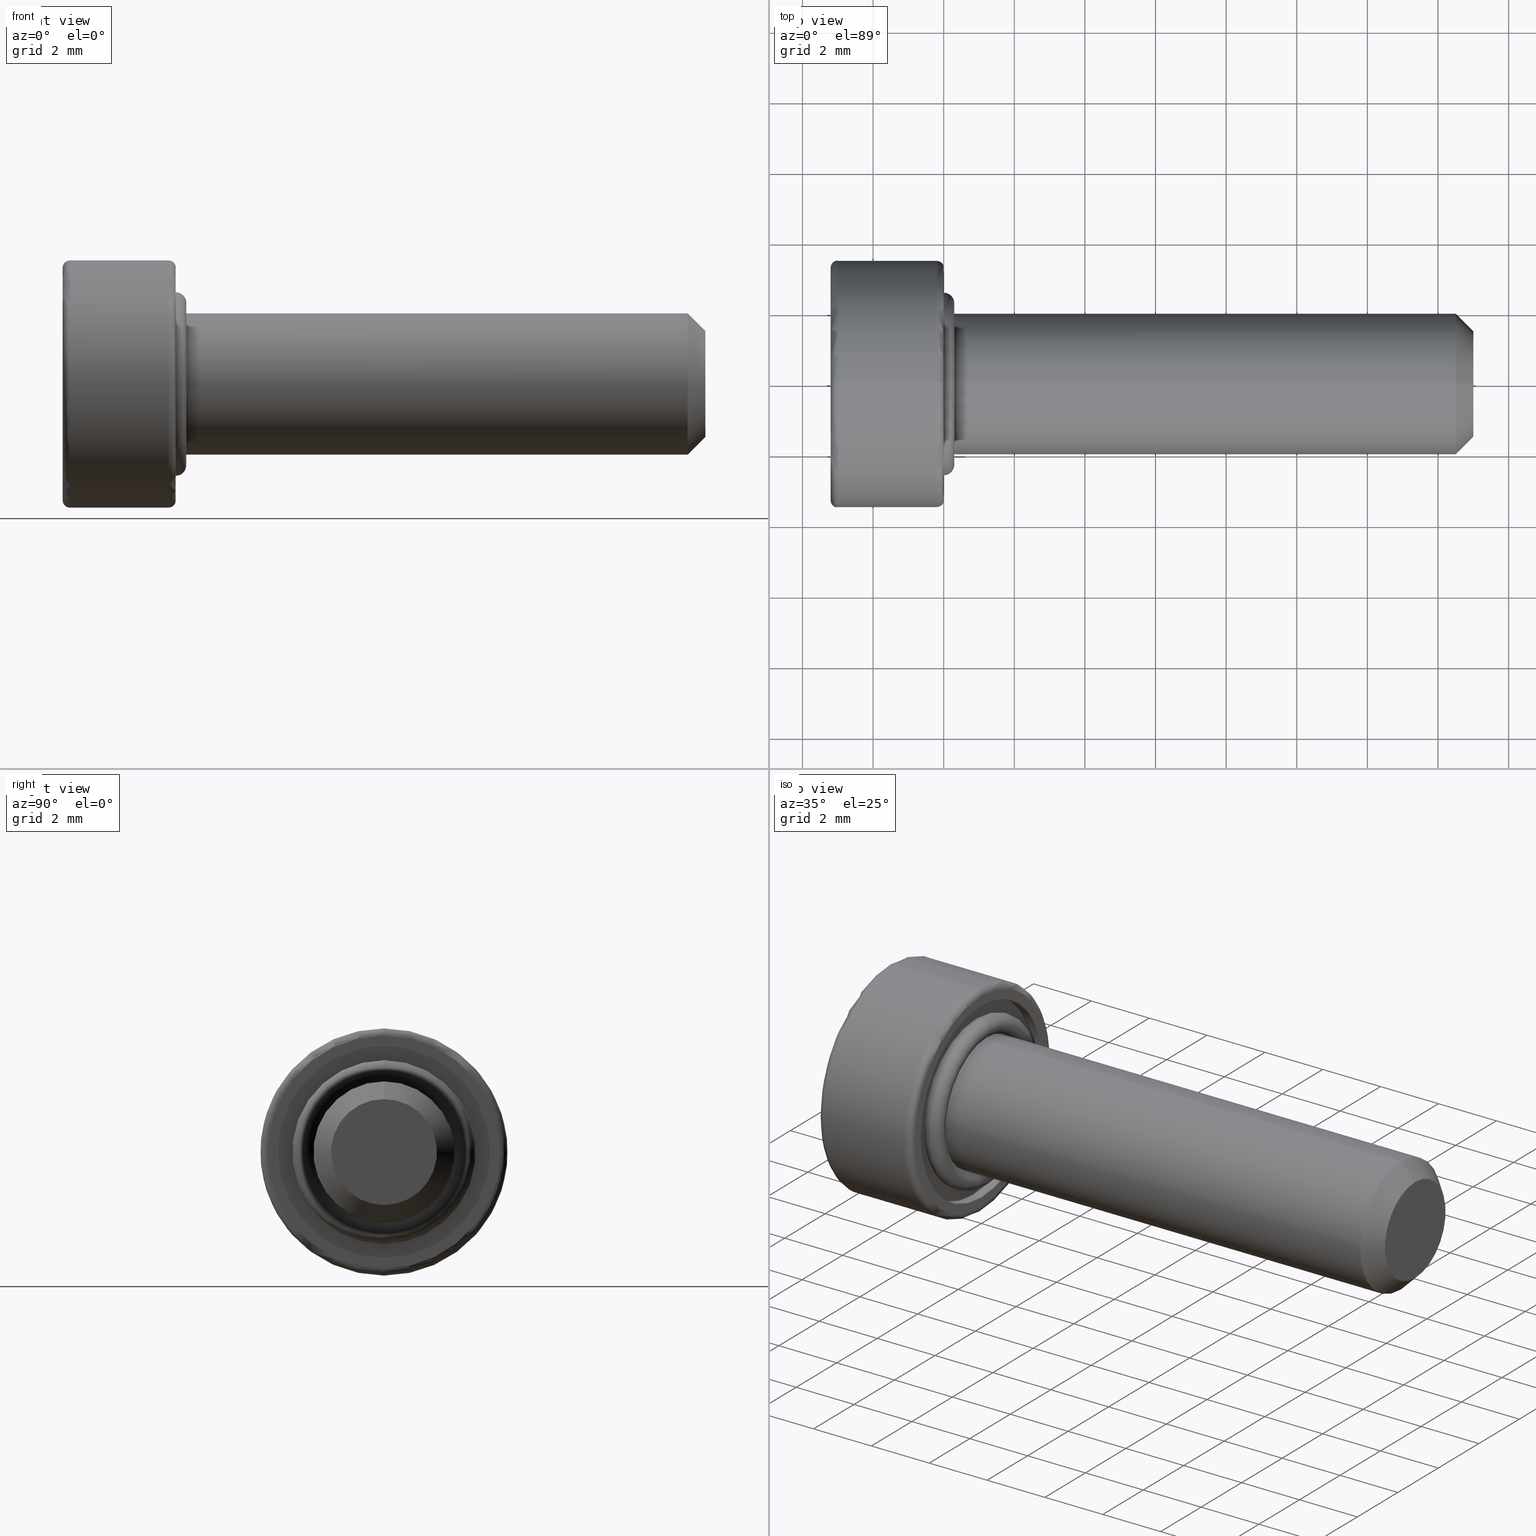
[diagram: canonical four-view strip — front | top / right | iso, engineering-drawing reading convention]
A machine part, canonical four-view strip (front | top / right | iso — engineering-drawing reading convention). The complete STEP part file that produces these views, byte-faithful:
ISO-10303-21;
HEADER;
FILE_DESCRIPTION (( 'STEP AP214' ),
    '1' );
FILE_NAME ('TL_418_M4_15.STEP',
    '2016-01-25T00:07:25',
    ( '' ),
    ( '' ),
    'SwSTEP 2.0',
    'SolidWorks 2015',
    '' );
FILE_SCHEMA (( 'AUTOMOTIVE_DESIGN' ));
ENDSEC;

DATA;
#1 = ADVANCED_FACE ( 'NONE', ( #259 ), #336, .F. ) ;
#2 = CIRCLE ( 'NONE', #41, 0.2000000000000000900 ) ;
#3 = DIRECTION ( 'NONE',  ( 0.0000000000000000000, 0.0000000000000000000, -1.000000000000000000 ) ) ;
#4 = CYLINDRICAL_SURFACE ( 'NONE', #221, 2.000000000000000000 ) ;
#5 = ORIENTED_EDGE ( 'NONE', *, *, #196, .F. ) ;
#6 = ORIENTED_EDGE ( 'NONE', *, *, #115, .T. ) ;
#7 = DIRECTION ( 'NONE',  ( 0.0000000000000000000, 0.0000000000000000000, -1.000000000000000000 ) ) ;
#8 = AXIS2_PLACEMENT_3D ( 'NONE', #659, #598, #521 ) ;
#9 = ORIENTED_EDGE ( 'NONE', *, *, #643, .T. ) ;
#10 = ORIENTED_EDGE ( 'NONE', *, *, #502, .F. ) ;
#11 = DIRECTION ( 'NONE',  ( 1.000000000000000000, -0.0000000000000000000, -0.0000000000000000000 ) ) ;
#12 = FACE_OUTER_BOUND ( 'NONE', #114, .T. ) ;
#13 = DIRECTION ( 'NONE',  ( -0.0000000000000000000, 0.4999999999999800700, -0.8660254037844501400 ) ) ;
#14 = DIRECTION ( 'NONE',  ( -1.000000000000000000, -0.0000000000000000000, -0.0000000000000000000 ) ) ;
#15 = EDGE_LOOP ( 'NONE', ( #218, #257, #430, #52 ) ) ;
#16 = DIRECTION ( 'NONE',  ( 0.0000000000000000000, 0.0000000000000000000, 1.000000000000000000 ) ) ;
#17 = VECTOR ( 'NONE', #398, 1000.000000000000100 ) ;
#18 = CARTESIAN_POINT ( 'NONE',  ( 0.0000000000000000000, 0.0000000000000000000, 0.0000000000000000000 ) ) ;
#19 = EDGE_CURVE ( 'NONE', #151, #352, #750, .T. ) ;
#20 = CARTESIAN_POINT ( 'NONE',  ( 0.0000000000000000000, 3.673940397442060400E-016, 3.000000000000000400 ) ) ;
#21 = DIRECTION ( 'NONE',  ( 0.0000000000000000000, 0.0000000000000000000, -1.000000000000000000 ) ) ;
#22 = EDGE_LOOP ( 'NONE', ( #104, #306, #353, #314, #518, #500 ) ) ;
#23 = MANIFOLD_SOLID_BREP ( '��]1', #509 ) ;
#24 = DIRECTION ( 'NONE',  ( 1.000000000000000000, 0.0000000000000000000, 0.0000000000000000000 ) ) ;
#25 = ORIENTED_EDGE ( 'NONE', *, *, #196, .T. ) ;
#26 = ADVANCED_FACE ( 'NONE', ( #96 ), #697, .T. ) ;
#27 = CARTESIAN_POINT ( 'NONE',  ( -3.000000000000000000, 0.0000000000000000000, 0.0000000000000000000 ) ) ;
#28 = DIRECTION ( 'NONE',  ( 0.0000000000000000000, 0.0000000000000000000, -1.000000000000000000 ) ) ;
#29 = DIRECTION ( 'NONE',  ( 0.0000000000000000000, 1.000000000000000000, -1.224646799147353200E-016 ) ) ;
#30 = CYLINDRICAL_SURFACE ( 'NONE', #524, 3.000000000000000400 ) ;
#31 = EDGE_CURVE ( 'NONE', #552, #517, #358, .T. ) ;
#32 = CIRCLE ( 'NONE', #781, 0.2999999999999999300 ) ;
#33 = DIRECTION ( 'NONE',  ( 1.000000000000000000, 0.0000000000000000000, 0.0000000000000000000 ) ) ;
#34 = AXIS2_PLACEMENT_3D ( 'NONE', #534, #396, #603 ) ;
#35 = DIRECTION ( 'NONE',  ( 0.0000000000000000000, 0.0000000000000000000, -1.000000000000000000 ) ) ;
#36 = EDGE_LOOP ( 'NONE', ( #105, #269 ) ) ;
#37 = SURFACE_SIDE_STYLE ('',( #638 ) ) ;
#38 = ORIENTED_EDGE ( 'NONE', *, *, #401, .T. ) ;
#39 = CARTESIAN_POINT ( 'NONE',  ( -1.900000000000000100, 0.7216878364870920000, 1.250000000000022600 ) ) ;
#40 = DIRECTION ( 'NONE',  ( -1.000000000000000000, 0.0000000000000000000, 0.0000000000000000000 ) ) ;
#41 = AXIS2_PLACEMENT_3D ( 'NONE', #162, #749, #356 ) ;
#42 = DIRECTION ( 'NONE',  ( 1.000000000000000000, 0.0000000000000000000, 0.0000000000000000000 ) ) ;
#43 = ITEM_DEFINED_TRANSFORMATION ( 'NONE', 'NONE', #46,  #435 ) ;
#44 = CARTESIAN_POINT ( 'NONE',  ( 0.0000000000000000000, 0.0000000000000000000, 0.0000000000000000000 ) ) ;
#45 = LINE ( 'NONE', #337, #17 ) ;
#46 = AXIS2_PLACEMENT_3D ( 'NONE', #622, #241, #686 ) ;
#47 = CARTESIAN_POINT ( 'NONE',  ( -1.900000000000000100, -0.7216878364870932300, -1.250000000000020900 ) ) ;
#48 =( NAMED_UNIT ( * ) PLANE_ANGLE_UNIT ( ) SI_UNIT ( $, .RADIAN. ) );
#49 = ORIENTED_EDGE ( 'NONE', *, *, #675, .T. ) ;
#50 = ADVANCED_FACE ( 'NONE', ( #12 ), #332, .T. ) ;
#51 = ORIENTED_EDGE ( 'NONE', *, *, #442, .F. ) ;
#52 = ORIENTED_EDGE ( 'NONE', *, *, #684, .T. ) ;
#53 = DIRECTION ( 'NONE',  ( 0.0000000000000000000, 0.0000000000000000000, 1.000000000000000000 ) ) ;
#54 =( REPRESENTATION_RELATIONSHIP ('NONE','NONE', #179, #326 ) REPRESENTATION_RELATIONSHIP_WITH_TRANSFORMATION ( #43 )SHAPE_REPRESENTATION_RELATIONSHIP( ) );
#55 = UNCERTAINTY_MEASURE_WITH_UNIT (LENGTH_MEASURE( 1.000000000000000100E-005 ), #98, 'distance_accuracy_value', 'NONE');
#56 = VECTOR ( 'NONE', #735, 1000.000000000000000 ) ;
#57 = DIRECTION ( 'NONE',  ( -0.0000000000000000000, 0.5000000000000395200, 0.8660254037844157300 ) ) ;
#58 = VECTOR ( 'NONE', #319, 1000.000000000000100 ) ;
#59 = ORIENTED_EDGE ( 'NONE', *, *, #412, .F. ) ;
#60 = CARTESIAN_POINT ( 'NONE',  ( -3.000000000000000000, 4.286263797015737100E-016, 3.500000000000000400 ) ) ;
#61 = VERTEX_POINT ( 'NONE', #278 ) ;
#62 = EDGE_LOOP ( 'NONE', ( #765, #693, #640, #203 ) ) ;
#63 = AXIS2_PLACEMENT_3D ( 'NONE', #784, #405, #28 ) ;
#64 = AXIS2_PLACEMENT_3D ( 'NONE', #494, #597, #682 ) ;
#65 = UNCERTAINTY_MEASURE_WITH_UNIT (LENGTH_MEASURE( 1.000000000000000100E-005 ), #300, 'distance_accuracy_value', 'NONE');
#66 = CARTESIAN_POINT ( 'NONE',  ( 15.00000000000000000, 0.0000000000000000000, 0.0000000000000000000 ) ) ;
#67 = EDGE_CURVE ( 'NONE', #153, #618, #192, .T. ) ;
#68 = DIRECTION ( 'NONE',  ( 0.0000000000000000000, 0.0000000000000000000, -1.000000000000000000 ) ) ;
#69 = DIRECTION ( 'NONE',  ( 0.0000000000000000000, 0.0000000000000000000, 1.000000000000000000 ) ) ;
#70 = VERTEX_POINT ( 'NONE', #565 ) ;
#71 = LINE ( 'NONE', #718, #395 ) ;
#72 = ORIENTED_EDGE ( 'NONE', *, *, #582, .F. ) ;
#73 = EDGE_CURVE ( 'NONE', #311, #438, #169, .T. ) ;
#74 = ORIENTED_EDGE ( 'NONE', *, *, #690, .T. ) ;
#75 = CARTESIAN_POINT ( 'NONE',  ( 0.0000000000000000000, 0.0000000000000000000, 0.0000000000000000000 ) ) ;
#76 = AXIS2_PLACEMENT_3D ( 'NONE', #209, #266, #650 ) ;
#77 = VECTOR ( 'NONE', #14, 1000.000000000000000 ) ;
#78 = CARTESIAN_POINT ( 'NONE',  ( -3.000000000000000000, 0.0000000000000000000, -3.300000000000000300 ) ) ;
#79 = VECTOR ( 'NONE', #272, 1000.000000000000000 ) ;
#80 = AXIS2_PLACEMENT_3D ( 'NONE', #27, #42, #213 ) ;
#81 = DIRECTION ( 'NONE',  ( 1.000000000000000000, 0.0000000000000000000, 0.0000000000000000000 ) ) ;
#82 = CARTESIAN_POINT ( 'NONE',  ( 0.0000000000000000000, 2.816687638038912500E-016, 2.300000000000000300 ) ) ;
#83 =( GEOMETRIC_REPRESENTATION_CONTEXT ( 3 ) GLOBAL_UNCERTAINTY_ASSIGNED_CONTEXT ( ( #65 ) ) GLOBAL_UNIT_ASSIGNED_CONTEXT ( ( #300, #743, #366 ) ) REPRESENTATION_CONTEXT ( 'NONE', 'WORKASPACE' ) );
#84 = CARTESIAN_POINT ( 'NONE',  ( -3.200000000000000200, 0.0000000000000000000, 0.0000000000000000000 ) ) ;
#85 = DIRECTION ( 'NONE',  ( 0.0000000000000000000, 0.0000000000000000000, -1.000000000000000000 ) ) ;
#86 = DIRECTION ( 'NONE',  ( -1.000000000000000000, -0.0000000000000000000, -0.0000000000000000000 ) ) ;
#87 = CARTESIAN_POINT ( 'NONE',  ( -3.000000000000000000, 0.0000000000000000000, 0.0000000000000000000 ) ) ;
#88 = DIRECTION ( 'NONE',  ( 0.0000000000000000000, -1.000000000000000000, 0.0000000000000000000 ) ) ;
#89 = AXIS2_PLACEMENT_3D ( 'NONE', #609, #472, #467 ) ;
#90 = CARTESIAN_POINT ( 'NONE',  ( -1.900000000000000100, 0.7216878364870081800, -1.250000000000022200 ) ) ;
#91 = DIRECTION ( 'NONE',  ( -1.000000000000000000, -0.0000000000000000000, -0.0000000000000000000 ) ) ;
#92 = ORIENTED_EDGE ( 'NONE', *, *, #374, .T. ) ;
#93 = ORIENTED_EDGE ( 'NONE', *, *, #73, .F. ) ;
#94 = DIRECTION ( 'NONE',  ( -0.0000000000000000000, -0.5000000000000381900, -0.8660254037844166100 ) ) ;
#95 = DIRECTION ( 'NONE',  ( -1.000000000000000000, -0.0000000000000000000, -0.0000000000000000000 ) ) ;
#96 = FACE_OUTER_BOUND ( 'NONE', #381, .T. ) ;
#97 = CARTESIAN_POINT ( 'NONE',  ( -1.900000000000000100, 0.7216878364870920000, 1.250000000000022600 ) ) ;
#98 =( LENGTH_UNIT ( ) NAMED_UNIT ( * ) SI_UNIT ( .MILLI., .METRE. ) );
#99 = AXIS2_PLACEMENT_3D ( 'NONE', #668, #285, #727 ) ;
#100 = FACE_OUTER_BOUND ( 'NONE', #608, .T. ) ;
#101 = AXIS2_PLACEMENT_3D ( 'NONE', #473, #275, #231 ) ;
#102 = VECTOR ( 'NONE', #142, 1000.000000000000000 ) ;
#103 = CARTESIAN_POINT ( 'NONE',  ( -0.2999999999999999900, 0.0000000000000000000, 0.0000000000000000000 ) ) ;
#104 = ORIENTED_EDGE ( 'NONE', *, *, #756, .F. ) ;
#105 = ORIENTED_EDGE ( 'NONE', *, *, #147, .T. ) ;
#106 = LINE ( 'NONE', #666, #346 ) ;
#107 = SURFACE_SIDE_STYLE ('',( #581 ) ) ;
#108 = ADVANCED_FACE ( 'NONE', ( #652 ), #177, .F. ) ;
#109 = EDGE_CURVE ( 'NONE', #253, #628, #486, .T. ) ;
#110 = APPLICATION_CONTEXT ( 'automotive_design' ) ;
#111 = PRESENTATION_STYLE_ASSIGNMENT (( #479 ) ) ;
#112 = EDGE_LOOP ( 'NONE', ( #245, #713, #93, #140 ) ) ;
#113 = ORIENTED_EDGE ( 'NONE', *, *, #287, .F. ) ;
#114 = EDGE_LOOP ( 'NONE', ( #429, #583, #375, #188 ) ) ;
#115 = EDGE_CURVE ( 'NONE', #452, #530, #679, .T. ) ;
#116 = DIRECTION ( 'NONE',  ( 0.0000000000000000000, -0.5000000000000395200, -0.8660254037844157300 ) ) ;
#117 = CIRCLE ( 'NONE', #211, 0.2999999999999999300 ) ;
#118 = LINE ( 'NONE', #97, #768 ) ;
#119 = EDGE_LOOP ( 'NONE', ( #547, #376, #25, #757 ) ) ;
#120 = AXIS2_PLACEMENT_3D ( 'NONE', #497, #123, #460 ) ;
#121 = CONICAL_SURFACE ( 'NONE', #613, 1.499999999999999600, 0.7853981633974482800 ) ;
#122 = AXIS2_PLACEMENT_3D ( 'NONE', #426, #53, #490 ) ;
#123 = DIRECTION ( 'NONE',  ( 1.000000000000000000, -0.0000000000000000000, -0.0000000000000000000 ) ) ;
#124 = ORIENTED_EDGE ( 'NONE', *, *, #626, .F. ) ;
#125 = CYLINDRICAL_SURFACE ( 'NONE', #264, 3.500000000000000400 ) ;
#126 = CARTESIAN_POINT ( 'NONE',  ( -3.200000000000000200, -0.7216878364870070700, 1.250000000000022400 ) ) ;
#127 = ADVANCED_FACE ( 'NONE', ( #316 ), #121, .T. ) ;
#128 = DIRECTION ( 'NONE',  ( 0.0000000000000000000, 0.0000000000000000000, -1.000000000000000000 ) ) ;
#129 = AXIS2_PLACEMENT_3D ( 'NONE', #338, #762, #397 ) ;
#130 = VERTEX_POINT ( 'NONE', #302 ) ;
#131 = ORIENTED_EDGE ( 'NONE', *, *, #468, .F. ) ;
#132 = DIRECTION ( 'NONE',  ( 0.0000000000000000000, 0.0000000000000000000, 1.000000000000000000 ) ) ;
#133 = STYLED_ITEM ( 'NONE', ( #248 ), #23 ) ;
#134 = PRESENTATION_STYLE_ASSIGNMENT (( #798 ) ) ;
#135 = LINE ( 'NONE', #186, #290 ) ;
#136 = CYLINDRICAL_SURFACE ( 'NONE', #471, 2.000000000000000000 ) ;
#137 = DIRECTION ( 'NONE',  ( 1.000000000000000000, 0.0000000000000000000, 0.0000000000000000000 ) ) ;
#138 = AXIS2_PLACEMENT_3D ( 'NONE', #409, #33, #474 ) ;
#139 = EDGE_LOOP ( 'NONE', ( #761, #431, #463, #696 ) ) ;
#140 = ORIENTED_EDGE ( 'NONE', *, *, #454, .T. ) ;
#141 = CARTESIAN_POINT ( 'NONE',  ( -3.200000000000000200, -0.7216878364870070700, 1.250000000000022400 ) ) ;
#142 = DIRECTION ( 'NONE',  ( 1.000000000000000000, -0.0000000000000000000, -0.0000000000000000000 ) ) ;
#143 = FACE_OUTER_BOUND ( 'NONE', #444, .T. ) ;
#144 = UNCERTAINTY_MEASURE_WITH_UNIT (LENGTH_MEASURE( 1.000000000000000100E-005 ), #424, 'distance_accuracy_value', 'NONE');
#145 = DIRECTION ( 'NONE',  ( 1.000000000000000000, -0.0000000000000000000, 0.0000000000000000000 ) ) ;
#146 = ORIENTED_EDGE ( 'NONE', *, *, #604, .T. ) ;
#147 = EDGE_CURVE ( 'NONE', #516, #315, #296, .T. ) ;
#148 = CIRCLE ( 'NONE', #138, 3.300000000000000300 ) ;
#149 = PRODUCT_DEFINITION_SHAPE ( 'NONE', 'NONE',  #820 ) ;
#150 = ADVANCED_FACE ( 'NONE', ( #143 ), #773, .F. ) ;
#151 = VERTEX_POINT ( 'NONE', #553 ) ;
#152 = PLANE ( 'NONE',  #596 ) ;
#153 = VERTEX_POINT ( 'NONE', #605 ) ;
#154 = DIRECTION ( 'NONE',  ( 0.0000000000000000000, -0.8660254037844158400, 0.5000000000000396300 ) ) ;
#155 = DIRECTION ( 'NONE',  ( -1.000000000000000000, 0.0000000000000000000, 0.0000000000000000000 ) ) ;
#156 = EDGE_CURVE ( 'NONE', #315, #516, #620, .T. ) ;
#157 = CARTESIAN_POINT ( 'NONE',  ( -3.200000000000000200, 0.0000000000000000000, -3.500000000000000400 ) ) ;
#158 = LINE ( 'NONE', #47, #631 ) ;
#159 = CARTESIAN_POINT ( 'NONE',  ( -3.200000000000000200, -1.443375672974113600, 2.556978512743960800E-014 ) ) ;
#160 = AXIS2_PLACEMENT_3D ( 'NONE', #18, #459, #85 ) ;
#161 = LINE ( 'NONE', #334, #646 ) ;
#162 = CARTESIAN_POINT ( 'NONE',  ( -0.2000000000000000900, 4.041334437186266000E-016, 3.300000000000000300 ) ) ;
#163 =( NAMED_UNIT ( * ) SI_UNIT ( $, .STERADIAN. ) SOLID_ANGLE_UNIT ( ) );
#164 = ORIENTED_EDGE ( 'NONE', *, *, #378, .T. ) ;
#165 = ORIENTED_EDGE ( 'NONE', *, *, #791, .T. ) ;
#166 = DIRECTION ( 'NONE',  ( 1.000000000000000000, -0.0000000000000000000, -0.0000000000000000000 ) ) ;
#167 = ORIENTED_EDGE ( 'NONE', *, *, #156, .F. ) ;
#168 = DIRECTION ( 'NONE',  ( 1.000000000000000000, 0.0000000000000000000, 0.0000000000000000000 ) ) ;
#169 = LINE ( 'NONE', #482, #813 ) ;
#170 = AXIS2_PLACEMENT_3D ( 'NONE', #350, #423, #220 ) ;
#171 = DIRECTION ( 'NONE',  ( 1.000000000000000000, 0.0000000000000000000, 0.0000000000000000000 ) ) ;
#172 =( NAMED_UNIT ( * ) SI_UNIT ( $, .STERADIAN. ) SOLID_ANGLE_UNIT ( ) );
#173 = PRODUCT_DEFINITION ( 'UNKNOWN', '', #382, #526 ) ;
#174 = ORIENTED_EDGE ( 'NONE', *, *, #491, .T. ) ;
#175 = ORIENTED_EDGE ( 'NONE', *, *, #67, .T. ) ;
#176 = CIRCLE ( 'NONE', #249, 0.2999999999999999300 ) ;
#177 = PLANE ( 'NONE',  #570 ) ;
#178 = DIRECTION ( 'NONE',  ( 1.000000000000000000, 0.0000000000000000000, 0.0000000000000000000 ) ) ;
#179 = SHAPE_REPRESENTATION ( 'TL_418_M4_15', ( #122, #46 ), #83 ) ;
#180 = UNCERTAINTY_MEASURE_WITH_UNIT (LENGTH_MEASURE( 1.000000000000000100E-005 ), #546, 'distance_accuracy_value', 'NONE');
#181 = VERTEX_POINT ( 'NONE', #60 ) ;
#182 = CARTESIAN_POINT ( 'NONE',  ( 15.00000000000000000, 0.0000000000000000000, 0.0000000000000000000 ) ) ;
#183 = APPLICATION_CONTEXT ( 'automotive_design' ) ;
#184 = FACE_OUTER_BOUND ( 'NONE', #206, .T. ) ;
#185 = TOROIDAL_SURFACE ( 'NONE', #386, 2.300000000000000300, 0.2999999999999998800 ) ;
#186 = CARTESIAN_POINT ( 'NONE',  ( -3.200000000000000200, 0.7216878364870920000, 1.250000000000022600 ) ) ;
#187 = PRESENTATION_LAYER_ASSIGNMENT (  '', '', ( #133 ) ) ;
#188 = ORIENTED_EDGE ( 'NONE', *, *, #555, .T. ) ;
#189 = ORIENTED_EDGE ( 'NONE', *, *, #109, .F. ) ;
#190 = PRESENTATION_LAYER_ASSIGNMENT (  '', '', ( #233 ) ) ;
#191 = EDGE_LOOP ( 'NONE', ( #466, #687, #533, #551 ) ) ;
#192 = CIRCLE ( 'NONE', #432, 3.000000000000000400 ) ;
#193 = ORIENTED_EDGE ( 'NONE', *, *, #367, .T. ) ;
#194 = LINE ( 'NONE', #270, #504 ) ;
#195 = CARTESIAN_POINT ( 'NONE',  ( -1.900000000000000100, 1.443375672974113000, -2.406411063411982600E-014 ) ) ;
#196 = EDGE_CURVE ( 'NONE', #618, #153, #635, .T. ) ;
#197 = ORIENTED_EDGE ( 'NONE', *, *, #726, .T. ) ;
#198 = DIRECTION ( 'NONE',  ( 0.0000000000000000000, 0.0000000000000000000, -1.000000000000000000 ) ) ;
#199 = COLOUR_RGB ( '',0.7921568627450980000, 0.8196078431372548800, 0.9333333333333333500 ) ;
#200 = DIRECTION ( 'NONE',  ( 0.0000000000000000000, 1.224646799147353200E-016, 1.000000000000000000 ) ) ;
#201 = CIRCLE ( 'NONE', #89, 3.300000000000000300 ) ;
#202 = EDGE_CURVE ( 'NONE', #181, #552, #456, .T. ) ;
#203 = ORIENTED_EDGE ( 'NONE', *, *, #367, .F. ) ;
#204 = CARTESIAN_POINT ( 'NONE',  ( -0.2999999999999999900, 0.0000000000000000000, 0.0000000000000000000 ) ) ;
#205 = AXIS2_PLACEMENT_3D ( 'NONE', #465, #215, #655 ) ;
#206 = EDGE_LOOP ( 'NONE', ( #388, #59, #193, #74 ) ) ;
#207 = ORIENTED_EDGE ( 'NONE', *, *, #273, .F. ) ;
#208 = DIRECTION ( 'NONE',  ( 0.0000000000000000000, -1.000000000000000000, 0.0000000000000000000 ) ) ;
#209 = CARTESIAN_POINT ( 'NONE',  ( -3.000000000000000000, 4.041334437186266000E-016, 3.300000000000000300 ) ) ;
#210 = CARTESIAN_POINT ( 'NONE',  ( -1.900000000000000100, -0.7216878364870932300, -1.250000000000020900 ) ) ;
#211 = AXIS2_PLACEMENT_3D ( 'NONE', #790, #29, #599 ) ;
#212 = SHAPE_DEFINITION_REPRESENTATION ( #740, #326 ) ;
#213 = DIRECTION ( 'NONE',  ( 0.0000000000000000000, 0.0000000000000000000, -1.000000000000000000 ) ) ;
#214 = VECTOR ( 'NONE', #13, 1000.000000000000100 ) ;
#215 = DIRECTION ( 'NONE',  ( 0.0000000000000000000, -9.013887592422725400E-016, -1.000000000000000000 ) ) ;
#216 = DIRECTION ( 'NONE',  ( 1.000000000000000000, 0.0000000000000000000, 0.0000000000000000000 ) ) ;
#217 = VERTEX_POINT ( 'NONE', #591 ) ;
#218 = ORIENTED_EDGE ( 'NONE', *, *, #806, .T. ) ;
#219 = DIRECTION ( 'NONE',  ( -0.0000000000000000000, -0.5000000000000381900, -0.8660254037844166100 ) ) ;
#220 = DIRECTION ( 'NONE',  ( 0.0000000000000000000, 0.0000000000000000000, -1.000000000000000000 ) ) ;
#221 = AXIS2_PLACEMENT_3D ( 'NONE', #222, #385, #641 ) ;
#222 = CARTESIAN_POINT ( 'NONE',  ( 15.00000000000000000, 0.0000000000000000000, 0.0000000000000000000 ) ) ;
#223 = CIRCLE ( 'NONE', #394, 1.499999999999999600 ) ;
#224 = CARTESIAN_POINT ( 'NONE',  ( -0.2999999999999999900, 0.0000000000000000000, -3.000000000000000400 ) ) ;
#225 = LINE ( 'NONE', #126, #58 ) ;
#226 = DIRECTION ( 'NONE',  ( 1.000000000000000000, 0.0000000000000000000, 0.0000000000000000000 ) ) ;
#227 = FILL_AREA_STYLE_COLOUR ( '', #411 ) ;
#228 = EDGE_LOOP ( 'NONE', ( #164, #481, #267, #483 ) ) ;
#229 = CARTESIAN_POINT ( 'NONE',  ( 15.00000000000000000, 0.0000000000000000000, 1.499999999999999600 ) ) ;
#230 = MECHANICAL_DESIGN_GEOMETRIC_PRESENTATION_REPRESENTATION (  '', ( #133 ), #261 ) ;
#231 = DIRECTION ( 'NONE',  ( 0.0000000000000000000, -0.4999999999999801300, 0.8660254037844501400 ) ) ;
#232 = CARTESIAN_POINT ( 'NONE',  ( 15.00000000000000000, 0.0000000000000000000, 1.499999999999999600 ) ) ;
#233 = STYLED_ITEM ( 'NONE', ( #111 ), #758 ) ;
#234 = DIRECTION ( 'NONE',  ( -1.000000000000000000, -0.0000000000000000000, -0.0000000000000000000 ) ) ;
#235 = CIRCLE ( 'NONE', #556, 2.000000000000000400 ) ;
#236 = DIRECTION ( 'NONE',  ( -0.0000000000000000000, -1.000000000000000000, 9.013887592422725400E-016 ) ) ;
#237 = CARTESIAN_POINT ( 'NONE',  ( -0.2999999999999999900, 0.0000000000000000000, 0.0000000000000000000 ) ) ;
#238 = PRODUCT_DEFINITION_SHAPE ( 'NONE', 'NONE',  #254 ) ;
#239 = CARTESIAN_POINT ( 'NONE',  ( 0.0000000000000000000, 0.0000000000000000000, 0.0000000000000000000 ) ) ;
#240 = DIRECTION ( 'NONE',  ( 0.0000000000000000000, 0.0000000000000000000, -1.000000000000000000 ) ) ;
#241 = DIRECTION ( 'NONE',  ( 0.0000000000000000000, 0.0000000000000000000, 1.000000000000000000 ) ) ;
#242 = EDGE_CURVE ( 'NONE', #253, #246, #106, .T. ) ;
#243 = PRODUCT_CONTEXT ( 'NONE', #183, 'mechanical' ) ;
#244 = CARTESIAN_POINT ( 'NONE',  ( -1.900000000000000100, -0.7216878364870070700, 1.250000000000022400 ) ) ;
#245 = ORIENTED_EDGE ( 'NONE', *, *, #578, .T. ) ;
#246 = VERTEX_POINT ( 'NONE', #671 ) ;
#247 = EDGE_CURVE ( 'NONE', #458, #445, #796, .T. ) ;
#248 = PRESENTATION_STYLE_ASSIGNMENT (( #661 ) ) ;
#249 = AXIS2_PLACEMENT_3D ( 'NONE', #780, #277, #333 ) ;
#250 = LINE ( 'NONE', #195, #77 ) ;
#251 = LINE ( 'NONE', #721, #79 ) ;
#252 = AXIS2_PLACEMENT_3D ( 'NONE', #402, #88, #35 ) ;
#253 = VERTEX_POINT ( 'NONE', #297 ) ;
#254 = PRODUCT_DEFINITION ( 'UNKNOWN', '', #299, #255 ) ;
#255 = PRODUCT_DEFINITION_CONTEXT ( 'detailed design', #689, 'design' ) ;
#256 = AXIS2_PLACEMENT_3D ( 'NONE', #393, #512, #769 ) ;
#257 = ORIENTED_EDGE ( 'NONE', *, *, #491, .F. ) ;
#258 = ORIENTED_EDGE ( 'NONE', *, *, #707, .T. ) ;
#259 = FACE_OUTER_BOUND ( 'NONE', #485, .T. ) ;
#260 = DIRECTION ( 'NONE',  ( 1.000000000000000000, 0.0000000000000000000, 0.0000000000000000000 ) ) ;
#261 =( GEOMETRIC_REPRESENTATION_CONTEXT ( 3 ) GLOBAL_UNCERTAINTY_ASSIGNED_CONTEXT ( ( #180 ) ) GLOBAL_UNIT_ASSIGNED_CONTEXT ( ( #546, #477, #288 ) ) REPRESENTATION_CONTEXT ( 'NONE', 'WORKASPACE' ) );
#262 = FACE_BOUND ( 'NONE', #293, .T. ) ;
#263 = CARTESIAN_POINT ( 'NONE',  ( -0.2000000000000000900, 0.0000000000000000000, 0.0000000000000000000 ) ) ;
#264 = AXIS2_PLACEMENT_3D ( 'NONE', #347, #226, #787 ) ;
#265 = LINE ( 'NONE', #523, #102 ) ;
#266 = DIRECTION ( 'NONE',  ( 0.0000000000000000000, 1.000000000000000000, -1.224646799147353200E-016 ) ) ;
#267 = ORIENTED_EDGE ( 'NONE', *, *, #791, .F. ) ;
#268 = DIRECTION ( 'NONE',  ( 1.000000000000000000, 0.0000000000000000000, 0.0000000000000000000 ) ) ;
#269 = ORIENTED_EDGE ( 'NONE', *, *, #156, .T. ) ;
#270 = CARTESIAN_POINT ( 'NONE',  ( -1.900000000000000100, 0.7216878364870081800, -1.250000000000022200 ) ) ;
#271 = FACE_OUTER_BOUND ( 'NONE', #506, .T. ) ;
#272 = DIRECTION ( 'NONE',  ( 1.000000000000000000, -0.0000000000000000000, -0.0000000000000000000 ) ) ;
#273 = EDGE_CURVE ( 'NONE', #542, #445, #670, .T. ) ;
#274 = DIRECTION ( 'NONE',  ( 0.0000000000000000000, 0.0000000000000000000, -1.000000000000000000 ) ) ;
#275 = DIRECTION ( 'NONE',  ( -0.0000000000000000000, 0.8660254037844501400, 0.4999999999999801300 ) ) ;
#276 = LINE ( 'NONE', #677, #56 ) ;
#277 = DIRECTION ( 'NONE',  ( -0.0000000000000000000, -1.000000000000000000, -0.0000000000000000000 ) ) ;
#278 = CARTESIAN_POINT ( 'NONE',  ( -3.673940397442057600E-017, 2.449293598294706900E-016, 2.000000000000000400 ) ) ;
#279 = PLANE ( 'NONE',  #205 ) ;
#280 = ORIENTED_EDGE ( 'NONE', *, *, #545, .F. ) ;
#281 = VERTEX_POINT ( 'NONE', #738 ) ;
#282 = DIRECTION ( 'NONE',  ( 0.0000000000000000000, 0.0000000000000000000, -1.000000000000000000 ) ) ;
#283 = CARTESIAN_POINT ( 'NONE',  ( 15.00000000000000000, 1.836970198721029400E-016, -1.499999999999999600 ) ) ;
#284 = ADVANCED_BREP_SHAPE_REPRESENTATION ( '', ( #23, #758, #435 ), #484 ) ;
#285 = DIRECTION ( 'NONE',  ( 1.000000000000000000, 0.0000000000000000000, 0.0000000000000000000 ) ) ;
#286 = EDGE_LOOP ( 'NONE', ( #642, #357 ) ) ;
#287 = EDGE_CURVE ( 'NONE', #552, #616, #2, .T. ) ;
#288 =( NAMED_UNIT ( * ) SI_UNIT ( $, .STERADIAN. ) SOLID_ANGLE_UNIT ( ) );
#289 = CARTESIAN_POINT ( 'NONE',  ( 0.0000000000000000000, 0.0000000000000000000, 0.0000000000000000000 ) ) ;
#290 = VECTOR ( 'NONE', #630, 1000.000000000000000 ) ;
#291 = TOROIDAL_SURFACE ( 'NONE', #607, 2.300000000000000300, 0.2999999999999998800 ) ;
#292 = DIRECTION ( 'NONE',  ( -0.7071067811865474600, 0.0000000000000000000, 0.7071067811865474600 ) ) ;
#293 = EDGE_LOOP ( 'NONE', ( #753, #362 ) ) ;
#294 = ORIENTED_EDGE ( 'NONE', *, *, #726, .F. ) ;
#295 = FILL_AREA_STYLE_COLOUR ( '', #199 ) ;
#296 = CIRCLE ( 'NONE', #649, 3.300000000000000300 ) ;
#297 = CARTESIAN_POINT ( 'NONE',  ( -1.900000000000000100, -1.443375672974113600, 2.556978512743960800E-014 ) ) ;
#298 = DIRECTION ( 'NONE',  ( 1.000000000000000000, 0.0000000000000000000, 0.0000000000000000000 ) ) ;
#299 = PRODUCT_DEFINITION_FORMATION_WITH_SPECIFIED_SOURCE ( 'ANY', '', #698, .NOT_KNOWN. ) ;
#300 =( LENGTH_UNIT ( ) NAMED_UNIT ( * ) SI_UNIT ( .MILLI., .METRE. ) );
#301 = FACE_OUTER_BOUND ( 'NONE', #119, .T. ) ;
#302 = CARTESIAN_POINT ( 'NONE',  ( -1.900000000000000100, 0.7216878364870920000, 1.250000000000022600 ) ) ;
#303 = APPLICATION_PROTOCOL_DEFINITION ( 'draft international standard', 'automotive_design', 1998, #689 ) ;
#304 = EDGE_LOOP ( 'NONE', ( #92, #38, #567, #165, #9, #330 ) ) ;
#305 = AXIS2_PLACEMENT_3D ( 'NONE', #66, #155, #132 ) ;
#306 = ORIENTED_EDGE ( 'NONE', *, *, #806, .F. ) ;
#307 = CARTESIAN_POINT ( 'NONE',  ( 0.0000000000000000000, 0.0000000000000000000, 0.0000000000000000000 ) ) ;
#308 = SURFACE_STYLE_FILL_AREA ( #742 ) ;
#309 = TOROIDAL_SURFACE ( 'NONE', #170, 2.300000000000000300, 0.2999999999999998800 ) ;
#310 = AXIS2_PLACEMENT_3D ( 'NONE', #691, #804, #240 ) ;
#311 = VERTEX_POINT ( 'NONE', #731 ) ;
#312 = MECHANICAL_DESIGN_GEOMETRIC_PRESENTATION_REPRESENTATION (  '', ( #233 ), #359 ) ;
#313 = VERTEX_POINT ( 'NONE', #722 ) ;
#314 = ORIENTED_EDGE ( 'NONE', *, *, #675, .F. ) ;
#315 = VERTEX_POINT ( 'NONE', #776 ) ;
#316 = FACE_OUTER_BOUND ( 'NONE', #339, .T. ) ;
#317 = VECTOR ( 'NONE', #91, 1000.000000000000000 ) ;
#318 = EDGE_CURVE ( 'NONE', #181, #70, #323, .T. ) ;
#319 = DIRECTION ( 'NONE',  ( -0.0000000000000000000, 0.5000000000000395200, 0.8660254037844157300 ) ) ;
#320 = VERTEX_POINT ( 'NONE', #373 ) ;
#321 = DIRECTION ( 'NONE',  ( -1.000000000000000000, 0.0000000000000000000, 0.0000000000000000000 ) ) ;
#322 = CARTESIAN_POINT ( 'NONE',  ( -0.2999999999999999900, 0.0000000000000000000, 2.000000000000000000 ) ) ;
#323 = CIRCLE ( 'NONE', #80, 3.500000000000000400 ) ;
#324 = EDGE_CURVE ( 'NONE', #70, #517, #645, .T. ) ;
#325 = FACE_OUTER_BOUND ( 'NONE', #377, .T. ) ;
#326 = SHAPE_REPRESENTATION ( 'screw', ( #435 ), #484 ) ;
#327 = DIRECTION ( 'NONE',  ( 1.000000000000000000, -0.0000000000000000000, -0.0000000000000000000 ) ) ;
#328 = ORIENTED_EDGE ( 'NONE', *, *, #67, .F. ) ;
#329 = ORIENTED_EDGE ( 'NONE', *, *, #242, .F. ) ;
#330 = ORIENTED_EDGE ( 'NONE', *, *, #73, .T. ) ;
#331 = ORIENTED_EDGE ( 'NONE', *, *, #563, .F. ) ;
#332 = CYLINDRICAL_SURFACE ( 'NONE', #480, 3.500000000000000400 ) ;
#333 = DIRECTION ( 'NONE',  ( 0.0000000000000000000, 0.0000000000000000000, -1.000000000000000000 ) ) ;
#334 = CARTESIAN_POINT ( 'NONE',  ( -3.200000000000000200, 0.7216878364870081800, -1.250000000000022200 ) ) ;
#335 = AXIS2_PLACEMENT_3D ( 'NONE', #766, #772, #723 ) ;
#336 = PLANE ( 'NONE',  #101 ) ;
#337 = CARTESIAN_POINT ( 'NONE',  ( -3.200000000000000200, 1.443375672974113000, -2.406411063411982600E-014 ) ) ;
#338 = CARTESIAN_POINT ( 'NONE',  ( 15.00000000000000000, 0.0000000000000000000, 0.0000000000000000000 ) ) ;
#339 = EDGE_LOOP ( 'NONE', ( #207, #437, #344, #131 ) ) ;
#340 = TOROIDAL_SURFACE ( 'NONE', #8, 3.300000000000000300, 0.2000000000000000100 ) ;
#341 = PRODUCT_RELATED_PRODUCT_CATEGORY ( 'part', '', ( #698 ) ) ;
#342 = PLANE ( 'NONE',  #34 ) ;
#343 = DIRECTION ( 'NONE',  ( 0.0000000000000000000, 0.0000000000000000000, -1.000000000000000000 ) ) ;
#344 = ORIENTED_EDGE ( 'NONE', *, *, #760, .T. ) ;
#345 = ORIENTED_EDGE ( 'NONE', *, *, #751, .F. ) ;
#346 = VECTOR ( 'NONE', #549, 1000.000000000000000 ) ;
#347 = CARTESIAN_POINT ( 'NONE',  ( -3.200000000000000200, 0.0000000000000000000, 0.0000000000000000000 ) ) ;
#348 = FACE_OUTER_BOUND ( 'NONE', #763, .T. ) ;
#349 = DIRECTION ( 'NONE',  ( 0.0000000000000000000, 0.0000000000000000000, -1.000000000000000000 ) ) ;
#350 = CARTESIAN_POINT ( 'NONE',  ( 0.0000000000000000000, 0.0000000000000000000, 0.0000000000000000000 ) ) ;
#351 = DIRECTION ( 'NONE',  ( -0.0000000000000000000, -0.4999999999999800200, 0.8660254037844502500 ) ) ;
#352 = VERTEX_POINT ( 'NONE', #224 ) ;
#353 = ORIENTED_EDGE ( 'NONE', *, *, #578, .F. ) ;
#354 = CARTESIAN_POINT ( 'NONE',  ( 15.00000000000000000, 0.0000000000000000000, 0.0000000000000000000 ) ) ;
#355 = AXIS2_PLACEMENT_3D ( 'NONE', #532, #407, #368 ) ;
#356 = DIRECTION ( 'NONE',  ( 0.0000000000000000000, 1.224646799147353200E-016, 1.000000000000000000 ) ) ;
#357 = ORIENTED_EDGE ( 'NONE', *, *, #632, .T. ) ;
#358 = CIRCLE ( 'NONE', #310, 3.500000000000000400 ) ;
#359 =( GEOMETRIC_REPRESENTATION_CONTEXT ( 3 ) GLOBAL_UNCERTAINTY_ASSIGNED_CONTEXT ( ( #55 ) ) GLOBAL_UNIT_ASSIGNED_CONTEXT ( ( #98, #548, #163 ) ) REPRESENTATION_CONTEXT ( 'NONE', 'WORKASPACE' ) );
#360 =( LENGTH_UNIT ( ) NAMED_UNIT ( * ) SI_UNIT ( .MILLI., .METRE. ) );
#361 = CONTEXT_DEPENDENT_SHAPE_REPRESENTATION ( #54, #149 ) ;
#362 = ORIENTED_EDGE ( 'NONE', *, *, #536, .F. ) ;
#363 = FACE_OUTER_BOUND ( 'NONE', #574, .T. ) ;
#364 = SURFACE_SIDE_STYLE ('',( #308 ) ) ;
#365 = ADVANCED_FACE ( 'NONE', ( #184 ), #309, .T. ) ;
#366 =( NAMED_UNIT ( * ) SI_UNIT ( $, .STERADIAN. ) SOLID_ANGLE_UNIT ( ) );
#367 = EDGE_CURVE ( 'NONE', #61, #313, #808, .T. ) ;
#368 = DIRECTION ( 'NONE',  ( 0.0000000000000000000, 0.0000000000000000000, -1.000000000000000000 ) ) ;
#369 = PRODUCT_CONTEXT ( 'NONE', #110, 'mechanical' ) ;
#370 = DIRECTION ( 'NONE',  ( 0.0000000000000000000, 0.0000000000000000000, -1.000000000000000000 ) ) ;
#371 = LINE ( 'NONE', #681, #710 ) ;
#372 = FACE_OUTER_BOUND ( 'NONE', #286, .T. ) ;
#373 = CARTESIAN_POINT ( 'NONE',  ( 0.0000000000000000000, 0.0000000000000000000, -3.300000000000000300 ) ) ;
#374 = EDGE_CURVE ( 'NONE', #438, #811, #158, .T. ) ;
#375 = ORIENTED_EDGE ( 'NONE', *, *, #324, .T. ) ;
#376 = ORIENTED_EDGE ( 'NONE', *, *, #626, .T. ) ;
#377 = EDGE_LOOP ( 'NONE', ( #667, #507, #777, #345 ) ) ;
#378 = EDGE_CURVE ( 'NONE', #709, #656, #135, .T. ) ;
#379 = LINE ( 'NONE', #538, #214 ) ;
#380 = AXIS2_PLACEMENT_3D ( 'NONE', #204, #137, #449 ) ;
#381 = EDGE_LOOP ( 'NONE', ( #51, #406, #747, #391 ) ) ;
#382 = PRODUCT_DEFINITION_FORMATION_WITH_SPECIFIED_SOURCE ( 'ANY', '', #634, .NOT_KNOWN. ) ;
#383 = CARTESIAN_POINT ( 'NONE',  ( -0.2000000000000000900, 0.0000000000000000000, -3.500000000000000400 ) ) ;
#384 = VECTOR ( 'NONE', #292, 1000.000000000000100 ) ;
#385 = DIRECTION ( 'NONE',  ( -1.000000000000000000, -0.0000000000000000000, -0.0000000000000000000 ) ) ;
#386 = AXIS2_PLACEMENT_3D ( 'NONE', #75, #11, #3 ) ;
#387 = TOROIDAL_SURFACE ( 'NONE', #662, 3.300000000000000300, 0.2000000000000000100 ) ;
#388 = ORIENTED_EDGE ( 'NONE', *, *, #663, .F. ) ;
#389 = EDGE_LOOP ( 'NONE', ( #258, #493, #759, #580 ) ) ;
#390 = CARTESIAN_POINT ( 'NONE',  ( 14.49999999999999800, 0.0000000000000000000, 2.000000000000000000 ) ) ;
#391 = ORIENTED_EDGE ( 'NONE', *, *, #412, .T. ) ;
#392 = ORIENTED_EDGE ( 'NONE', *, *, #31, .F. ) ;
#393 = CARTESIAN_POINT ( 'NONE',  ( -3.200000000000000200, 0.0000000000000000000, 0.0000000000000000000 ) ) ;
#394 = AXIS2_PLACEMENT_3D ( 'NONE', #550, #168, #615 ) ;
#395 = VECTOR ( 'NONE', #584, 1000.000000000000000 ) ;
#396 = DIRECTION ( 'NONE',  ( 0.0000000000000000000, -0.8660254037844502500, -0.4999999999999800200 ) ) ;
#397 = DIRECTION ( 'NONE',  ( 0.0000000000000000000, 0.0000000000000000000, -1.000000000000000000 ) ) ;
#398 = DIRECTION ( 'NONE',  ( -0.0000000000000000000, 0.4999999999999800700, -0.8660254037844501400 ) ) ;
#399 = CARTESIAN_POINT ( 'NONE',  ( 14.49999999999999800, 0.0000000000000000000, 0.0000000000000000000 ) ) ;
#400 = CARTESIAN_POINT ( 'NONE',  ( -1.900000000000000100, -0.7216878364870070700, 1.250000000000022400 ) ) ;
#401 = EDGE_CURVE ( 'NONE', #811, #253, #448, .T. ) ;
#402 = CARTESIAN_POINT ( 'NONE',  ( -0.2000000000000000900, 0.0000000000000000000, -3.300000000000000300 ) ) ;
#403 = DIRECTION ( 'NONE',  ( 0.0000000000000000000, 0.0000000000000000000, -1.000000000000000000 ) ) ;
#404 = DIRECTION ( 'NONE',  ( 0.0000000000000000000, 0.0000000000000000000, -1.000000000000000000 ) ) ;
#405 = DIRECTION ( 'NONE',  ( 1.000000000000000000, 0.0000000000000000000, 0.0000000000000000000 ) ) ;
#406 = ORIENTED_EDGE ( 'NONE', *, *, #690, .F. ) ;
#407 = DIRECTION ( 'NONE',  ( 1.000000000000000000, -0.0000000000000000000, -0.0000000000000000000 ) ) ;
#408 = ORIENTED_EDGE ( 'NONE', *, *, #499, .F. ) ;
#409 = CARTESIAN_POINT ( 'NONE',  ( 0.0000000000000000000, 0.0000000000000000000, 0.0000000000000000000 ) ) ;
#410 = PLANE ( 'NONE',  #566 ) ;
#411 = COLOUR_RGB ( '',0.7921568627450980000, 0.8196078431372548800, 0.9333333333333333500 ) ;
#412 = EDGE_CURVE ( 'NONE', #61, #543, #117, .T. ) ;
#413 = FILL_AREA_STYLE ('',( #732 ) ) ;
#414 = DIRECTION ( 'NONE',  ( 0.0000000000000000000, 0.8660254037844165000, -0.5000000000000383000 ) ) ;
#415 = CARTESIAN_POINT ( 'NONE',  ( -3.200000000000000200, 0.0000000000000000000, 0.0000000000000000000 ) ) ;
#416 = ORIENTED_EDGE ( 'NONE', *, *, #595, .T. ) ;
#417 = CIRCLE ( 'NONE', #457, 2.000000000000000000 ) ;
#418 = DIRECTION ( 'NONE',  ( 1.000000000000000000, -0.0000000000000000000, -0.0000000000000000000 ) ) ;
#419 = TOROIDAL_SURFACE ( 'NONE', #764, 3.300000000000000300, 0.2000000000000000100 ) ;
#420 = DIRECTION ( 'NONE',  ( 1.000000000000000000, 0.0000000000000000000, 0.0000000000000000000 ) ) ;
#421 = EDGE_CURVE ( 'NONE', #517, #320, #611, .T. ) ;
#422 = AXIS2_PLACEMENT_3D ( 'NONE', #82, #648, #200 ) ;
#423 = DIRECTION ( 'NONE',  ( 1.000000000000000000, -0.0000000000000000000, -0.0000000000000000000 ) ) ;
#424 =( LENGTH_UNIT ( ) NAMED_UNIT ( * ) SI_UNIT ( .MILLI., .METRE. ) );
#425 = PRODUCT_RELATED_PRODUCT_CATEGORY ( 'part', '', ( #634 ) ) ;
#426 = CARTESIAN_POINT ( 'NONE',  ( 0.0000000000000000000, 0.0000000000000000000, 0.0000000000000000000 ) ) ;
#427 = APPLICATION_PROTOCOL_DEFINITION ( 'draft international standard', 'automotive_design', 1998, #802 ) ;
#428 = AXIS2_PLACEMENT_3D ( 'NONE', #78, #208, #198 ) ;
#429 = ORIENTED_EDGE ( 'NONE', *, *, #202, .F. ) ;
#430 = ORIENTED_EDGE ( 'NONE', *, *, #374, .F. ) ;
#431 = ORIENTED_EDGE ( 'NONE', *, *, #273, .T. ) ;
#432 = AXIS2_PLACEMENT_3D ( 'NONE', #307, #559, #654 ) ;
#433 = CIRCLE ( 'NONE', #335, 2.600000000000000500 ) ;
#434 = FACE_OUTER_BOUND ( 'NONE', #304, .T. ) ;
#435 = AXIS2_PLACEMENT_3D ( 'NONE', #239, #683, #298 ) ;
#436 = ADVANCED_FACE ( 'NONE', ( #262, #788 ), #579, .T. ) ;
#437 = ORIENTED_EDGE ( 'NONE', *, *, #799, .F. ) ;
#438 = VERTEX_POINT ( 'NONE', #725 ) ;
#439 = UNCERTAINTY_MEASURE_WITH_UNIT (LENGTH_MEASURE( 1.000000000000000100E-005 ), #360, 'distance_accuracy_value', 'NONE');
#440 = VECTOR ( 'NONE', #797, 1000.000000000000000 ) ;
#441 = CARTESIAN_POINT ( 'NONE',  ( -0.2000000000000000900, 4.286263797015737100E-016, 3.500000000000000400 ) ) ;
#442 = EDGE_CURVE ( 'NONE', #470, #543, #433, .T. ) ;
#443 = VECTOR ( 'NONE', #351, 1000.000000000000200 ) ;
#444 = EDGE_LOOP ( 'NONE', ( #124, #708, #146, #175 ) ) ;
#445 = VERTEX_POINT ( 'NONE', #664 ) ;
#446 = DIRECTION ( 'NONE',  ( -1.000000000000000000, -0.0000000000000000000, -0.0000000000000000000 ) ) ;
#447 = EDGE_CURVE ( 'NONE', #543, #61, #752, .T. ) ;
#448 = LINE ( 'NONE', #475, #767 ) ;
#449 = DIRECTION ( 'NONE',  ( 0.0000000000000000000, 0.0000000000000000000, -1.000000000000000000 ) ) ;
#450 = FACE_OUTER_BOUND ( 'NONE', #191, .T. ) ;
#451 = DIRECTION ( 'NONE',  ( -1.000000000000000000, -0.0000000000000000000, -0.0000000000000000000 ) ) ;
#452 = VERTEX_POINT ( 'NONE', #322 ) ;
#453 = DIRECTION ( 'NONE',  ( 0.0000000000000000000, 0.0000000000000000000, -1.000000000000000000 ) ) ;
#454 = EDGE_CURVE ( 'NONE', #311, #281, #250, .T. ) ;
#455 = CARTESIAN_POINT ( 'NONE',  ( 0.0000000000000000000, 0.0000000000000000000, 0.0000000000000000000 ) ) ;
#456 = LINE ( 'NONE', #734, #440 ) ;
#457 = AXIS2_PLACEMENT_3D ( 'NONE', #399, #321, #539 ) ;
#458 = VERTEX_POINT ( 'NONE', #390 ) ;
#459 = DIRECTION ( 'NONE',  ( 1.000000000000000000, -0.0000000000000000000, -0.0000000000000000000 ) ) ;
#460 = DIRECTION ( 'NONE',  ( 0.0000000000000000000, 0.0000000000000000000, -1.000000000000000000 ) ) ;
#461 = LINE ( 'NONE', #541, #800 ) ;
#462 = DIRECTION ( 'NONE',  ( 1.000000000000000000, 0.0000000000000000000, 0.0000000000000000000 ) ) ;
#463 = ORIENTED_EDGE ( 'NONE', *, *, #247, .F. ) ;
#464 = CARTESIAN_POINT ( 'NONE',  ( -0.2999999999999999900, 2.449293598294706400E-016, -2.000000000000000000 ) ) ;
#465 = CARTESIAN_POINT ( 'NONE',  ( -1.900000000000000100, -0.7216878364870932300, -1.250000000000020900 ) ) ;
#466 = ORIENTED_EDGE ( 'NONE', *, *, #636, .F. ) ;
#467 = DIRECTION ( 'NONE',  ( 0.0000000000000000000, 0.0000000000000000000, -1.000000000000000000 ) ) ;
#468 = EDGE_CURVE ( 'NONE', #445, #458, #417, .T. ) ;
#469 = CARTESIAN_POINT ( 'NONE',  ( 15.00000000000000000, 2.449293598294706400E-016, -2.000000000000000000 ) ) ;
#470 = VERTEX_POINT ( 'NONE', #705 ) ;
#471 = AXIS2_PLACEMENT_3D ( 'NONE', #354, #451, #69 ) ;
#472 = DIRECTION ( 'NONE',  ( 1.000000000000000000, 0.0000000000000000000, 0.0000000000000000000 ) ) ;
#473 = CARTESIAN_POINT ( 'NONE',  ( -1.900000000000000100, 1.443375672974113000, -2.406411063411982600E-014 ) ) ;
#474 = DIRECTION ( 'NONE',  ( 0.0000000000000000000, 0.0000000000000000000, -1.000000000000000000 ) ) ;
#475 = CARTESIAN_POINT ( 'NONE',  ( -1.900000000000000100, -1.443375672974113600, 2.556978512743960800E-014 ) ) ;
#476 = VECTOR ( 'NONE', #489, 1000.000000000000000 ) ;
#477 =( NAMED_UNIT ( * ) PLANE_ANGLE_UNIT ( ) SI_UNIT ( $, .RADIAN. ) );
#478 = CONICAL_SURFACE ( 'NONE', #305, 1.499999999999999600, 0.7853981633974482800 ) ;
#479 = SURFACE_STYLE_USAGE ( .BOTH. , #37 ) ;
#480 = AXIS2_PLACEMENT_3D ( 'NONE', #415, #171, #403 ) ;
#481 = ORIENTED_EDGE ( 'NONE', *, *, #595, .F. ) ;
#482 = CARTESIAN_POINT ( 'NONE',  ( -1.900000000000000100, 0.7216878364870081800, -1.250000000000022200 ) ) ;
#483 = ORIENTED_EDGE ( 'NONE', *, *, #499, .T. ) ;
#484 =( GEOMETRIC_REPRESENTATION_CONTEXT ( 3 ) GLOBAL_UNCERTAINTY_ASSIGNED_CONTEXT ( ( #439 ) ) GLOBAL_UNIT_ASSIGNED_CONTEXT ( ( #360, #554, #172 ) ) REPRESENTATION_CONTEXT ( 'NONE', 'WORKASPACE' ) );
#485 = EDGE_LOOP ( 'NONE', ( #49, #647, #748, #416 ) ) ;
#486 = LINE ( 'NONE', #529, #520 ) ;
#487 =( NAMED_UNIT ( * ) SI_UNIT ( $, .STERADIAN. ) SOLID_ANGLE_UNIT ( ) );
#488 = FACE_OUTER_BOUND ( 'NONE', #389, .T. ) ;
#489 = DIRECTION ( 'NONE',  ( 1.000000000000000000, 0.0000000000000000000, 0.0000000000000000000 ) ) ;
#490 = DIRECTION ( 'NONE',  ( 1.000000000000000000, 0.0000000000000000000, 0.0000000000000000000 ) ) ;
#491 = EDGE_CURVE ( 'NONE', #811, #217, #587, .T. ) ;
#492 = ADVANCED_FACE ( 'NONE', ( #100, #737 ), #152, .T. ) ;
#493 = ORIENTED_EDGE ( 'NONE', *, *, #202, .T. ) ;
#494 = CARTESIAN_POINT ( 'NONE',  ( -0.2999999999999999900, 0.0000000000000000000, 0.0000000000000000000 ) ) ;
#495 = CARTESIAN_POINT ( 'NONE',  ( 0.0000000000000000000, 0.0000000000000000000, 0.0000000000000000000 ) ) ;
#496 = VECTOR ( 'NONE', #680, 1000.000000000000100 ) ;
#497 = CARTESIAN_POINT ( 'NONE',  ( -3.673940397442058300E-017, 0.0000000000000000000, 0.0000000000000000000 ) ) ;
#498 = FACE_OUTER_BOUND ( 'NONE', #139, .T. ) ;
#499 = EDGE_CURVE ( 'NONE', #628, #709, #71, .T. ) ;
#500 = ORIENTED_EDGE ( 'NONE', *, *, #510, .F. ) ;
#501 = ORIENTED_EDGE ( 'NONE', *, *, #442, .T. ) ;
#502 = EDGE_CURVE ( 'NONE', #313, #61, #235, .T. ) ;
#503 = VERTEX_POINT ( 'NONE', #778 ) ;
#504 = VECTOR ( 'NONE', #774, 1000.000000000000000 ) ;
#505 = CARTESIAN_POINT ( 'NONE',  ( -1.900000000000000100, 0.0000000000000000000, 0.0000000000000000000 ) ) ;
#506 = EDGE_LOOP ( 'NONE', ( #783, #329, #674, #174 ) ) ;
#507 = ORIENTED_EDGE ( 'NONE', *, *, #715, .T. ) ;
#508 = DIRECTION ( 'NONE',  ( -1.000000000000000000, -0.0000000000000000000, -0.0000000000000000000 ) ) ;
#509 = CLOSED_SHELL ( 'NONE', ( #593, #571, #26, #365 ) ) ;
#510 = EDGE_CURVE ( 'NONE', #246, #709, #225, .T. ) ;
#511 = ORIENTED_EDGE ( 'NONE', *, *, #19, .T. ) ;
#512 = DIRECTION ( 'NONE',  ( 1.000000000000000000, 0.0000000000000000000, 0.0000000000000000000 ) ) ;
#513 = SHAPE_DEFINITION_REPRESENTATION ( #238, #179 ) ;
#514 = FACE_BOUND ( 'NONE', #22, .T. ) ;
#515 = PLANE ( 'NONE',  #256 ) ;
#516 = VERTEX_POINT ( 'NONE', #716 ) ;
#517 = VERTEX_POINT ( 'NONE', #383 ) ;
#518 = ORIENTED_EDGE ( 'NONE', *, *, #378, .F. ) ;
#519 = AXIS2_PLACEMENT_3D ( 'NONE', #237, #24, #657 ) ;
#520 = VECTOR ( 'NONE', #57, 1000.000000000000100 ) ;
#521 = DIRECTION ( 'NONE',  ( 0.0000000000000000000, 0.0000000000000000000, -1.000000000000000000 ) ) ;
#522 = ADVANCED_FACE ( 'NONE', ( #711 ), #387, .T. ) ;
#523 = CARTESIAN_POINT ( 'NONE',  ( -0.2999999999999999900, 0.0000000000000000000, -3.000000000000000400 ) ) ;
#524 = AXIS2_PLACEMENT_3D ( 'NONE', #103, #418, #792 ) ;
#525 = CARTESIAN_POINT ( 'NONE',  ( 15.00000000000000000, 0.0000000000000000000, 0.0000000000000000000 ) ) ;
#526 = PRODUCT_DEFINITION_CONTEXT ( 'detailed design', #802, 'design' ) ;
#527 = CARTESIAN_POINT ( 'NONE',  ( -3.673940397442058300E-017, 0.0000000000000000000, 0.0000000000000000000 ) ) ;
#528 = CIRCLE ( 'NONE', #160, 2.600000000000000500 ) ;
#529 = CARTESIAN_POINT ( 'NONE',  ( -1.900000000000000100, -0.7216878364870070700, 1.250000000000022400 ) ) ;
#530 = VERTEX_POINT ( 'NONE', #464 ) ;
#531 = CARTESIAN_POINT ( 'NONE',  ( 0.0000000000000000000, 3.184081677783118700E-016, 2.600000000000000500 ) ) ;
#532 = CARTESIAN_POINT ( 'NONE',  ( 0.0000000000000000000, 0.0000000000000000000, 0.0000000000000000000 ) ) ;
#533 = ORIENTED_EDGE ( 'NONE', *, *, #582, .T. ) ;
#534 = CARTESIAN_POINT ( 'NONE',  ( -1.900000000000000100, -1.443375672974113600, 2.556978512743960800E-014 ) ) ;
#535 = ADVANCED_FACE ( 'NONE', ( #564 ), #775, .F. ) ;
#536 = EDGE_CURVE ( 'NONE', #530, #452, #724, .T. ) ;
#537 = DIRECTION ( 'NONE',  ( -1.000000000000000000, -0.0000000000000000000, -0.0000000000000000000 ) ) ;
#538 = CARTESIAN_POINT ( 'NONE',  ( -1.900000000000000100, 1.443375672974113000, -2.406411063411982600E-014 ) ) ;
#539 = DIRECTION ( 'NONE',  ( 0.0000000000000000000, 0.0000000000000000000, -1.000000000000000000 ) ) ;
#540 = CIRCLE ( 'NONE', #819, 3.500000000000000400 ) ;
#541 = CARTESIAN_POINT ( 'NONE',  ( 15.00000000000000000, 0.0000000000000000000, 2.000000000000000000 ) ) ;
#542 = VERTEX_POINT ( 'NONE', #712 ) ;
#543 = VERTEX_POINT ( 'NONE', #531 ) ;
#544 = DIRECTION ( 'NONE',  ( 0.0000000000000000000, -1.000000000000000000, -1.502314598737123300E-016 ) ) ;
#545 = EDGE_CURVE ( 'NONE', #470, #313, #32, .T. ) ;
#546 =( LENGTH_UNIT ( ) NAMED_UNIT ( * ) SI_UNIT ( .MILLI., .METRE. ) );
#547 = ORIENTED_EDGE ( 'NONE', *, *, #19, .F. ) ;
#548 =( NAMED_UNIT ( * ) PLANE_ANGLE_UNIT ( ) SI_UNIT ( $, .RADIAN. ) );
#549 = DIRECTION ( 'NONE',  ( -1.000000000000000000, -0.0000000000000000000, -0.0000000000000000000 ) ) ;
#550 = CARTESIAN_POINT ( 'NONE',  ( 15.00000000000000000, 0.0000000000000000000, 0.0000000000000000000 ) ) ;
#551 = ORIENTED_EDGE ( 'NONE', *, *, #318, .F. ) ;
#552 = VERTEX_POINT ( 'NONE', #441 ) ;
#553 = CARTESIAN_POINT ( 'NONE',  ( -0.2999999999999999900, 3.673940397442060400E-016, 3.000000000000000400 ) ) ;
#554 =( NAMED_UNIT ( * ) PLANE_ANGLE_UNIT ( ) SI_UNIT ( $, .RADIAN. ) );
#555 = EDGE_CURVE ( 'NONE', #517, #552, #540, .T. ) ;
#556 = AXIS2_PLACEMENT_3D ( 'NONE', #527, #327, #282 ) ;
#557 = DIRECTION ( 'NONE',  ( 0.0000000000000000000, 0.0000000000000000000, 1.000000000000000000 ) ) ;
#558 = ADVANCED_FACE ( 'NONE', ( #372 ), #733, .T. ) ;
#559 = DIRECTION ( 'NONE',  ( 1.000000000000000000, 0.0000000000000000000, 0.0000000000000000000 ) ) ;
#560 = ADVANCED_FACE ( 'NONE', ( #692 ), #4, .T. ) ;
#561 = LINE ( 'NONE', #232, #384 ) ;
#562 = ADVANCED_FACE ( 'NONE', ( #514, #672 ), #515, .F. ) ;
#563 = EDGE_CURVE ( 'NONE', #320, #616, #201, .T. ) ;
#564 = FACE_OUTER_BOUND ( 'NONE', #228, .T. ) ;
#565 = CARTESIAN_POINT ( 'NONE',  ( -3.000000000000000000, 0.0000000000000000000, -3.500000000000000400 ) ) ;
#566 = AXIS2_PLACEMENT_3D ( 'NONE', #90, #414, #639 ) ;
#567 = ORIENTED_EDGE ( 'NONE', *, *, #109, .T. ) ;
#568 = ADVANCED_FACE ( 'NONE', ( #498 ), #478, .T. ) ;
#569 = DIRECTION ( 'NONE',  ( -1.000000000000000000, 0.0000000000000000000, 0.0000000000000000000 ) ) ;
#570 = AXIS2_PLACEMENT_3D ( 'NONE', #244, #154, #116 ) ;
#571 = ADVANCED_FACE ( 'NONE', ( #348 ), #185, .T. ) ;
#572 = VECTOR ( 'NONE', #508, 1000.000000000000000 ) ;
#573 = STYLED_ITEM ( 'NONE', ( #134 ), #284 ) ;
#574 = EDGE_LOOP ( 'NONE', ( #113, #585, #714, #294 ) ) ;
#575 = DIRECTION ( 'NONE',  ( -0.0000000000000000000, -1.000000000000000000, -0.0000000000000000000 ) ) ;
#576 = ADVANCED_FACE ( 'NONE', ( #325 ), #136, .T. ) ;
#577 = CARTESIAN_POINT ( 'NONE',  ( 0.0000000000000000000, 0.0000000000000000000, -2.300000000000000300 ) ) ;
#578 = EDGE_CURVE ( 'NONE', #281, #503, #161, .T. ) ;
#579 = PLANE ( 'NONE',  #380 ) ;
#580 = ORIENTED_EDGE ( 'NONE', *, *, #324, .F. ) ;
#581 = SURFACE_STYLE_FILL_AREA ( #619 ) ;
#582 = EDGE_CURVE ( 'NONE', #516, #70, #809, .T. ) ;
#583 = ORIENTED_EDGE ( 'NONE', *, *, #318, .T. ) ;
#584 = DIRECTION ( 'NONE',  ( -1.000000000000000000, -0.0000000000000000000, -0.0000000000000000000 ) ) ;
#585 = ORIENTED_EDGE ( 'NONE', *, *, #555, .F. ) ;
#586 = SHAPE_REPRESENTATION_RELATIONSHIP ( 'NONE' , 'NONE' ,  #326, #284 ) ;
#587 = LINE ( 'NONE', #210, #572 ) ;
#588 = ADVANCED_FACE ( 'NONE', ( #633 ), #410, .F. ) ;
#589 = CIRCLE ( 'NONE', #76, 0.2000000000000000900 ) ;
#590 = DIRECTION ( 'NONE',  ( -0.0000000000000000000, -0.4999999999999800200, 0.8660254037844502500 ) ) ;
#591 = CARTESIAN_POINT ( 'NONE',  ( -3.200000000000000200, -0.7216878364870931200, -1.250000000000020700 ) ) ;
#592 = EDGE_LOOP ( 'NONE', ( #701, #511 ) ) ;
#593 = ADVANCED_FACE ( 'NONE', ( #789 ), #291, .T. ) ;
#594 = CLOSED_SHELL ( 'NONE', ( #522, #623, #576, #568, #801, #744, #50, #562, #492, #150, #436, #558, #127, #560, #600, #688, #660, #588, #1, #535, #108, #627, #621 ) ) ;
#595 = EDGE_CURVE ( 'NONE', #130, #656, #118, .T. ) ;
#596 = AXIS2_PLACEMENT_3D ( 'NONE', #455, #818, #601 ) ;
#597 = DIRECTION ( 'NONE',  ( 1.000000000000000000, 0.0000000000000000000, 0.0000000000000000000 ) ) ;
#598 = DIRECTION ( 'NONE',  ( 1.000000000000000000, 0.0000000000000000000, 0.0000000000000000000 ) ) ;
#599 = DIRECTION ( 'NONE',  ( 0.0000000000000000000, 1.224646799147353200E-016, 1.000000000000000000 ) ) ;
#600 = ADVANCED_FACE ( 'NONE', ( #450 ), #612, .T. ) ;
#601 = DIRECTION ( 'NONE',  ( 0.0000000000000000000, 0.0000000000000000000, -1.000000000000000000 ) ) ;
#602 = CARTESIAN_POINT ( 'NONE',  ( -0.2999999999999999900, 0.0000000000000000000, 0.0000000000000000000 ) ) ;
#603 = DIRECTION ( 'NONE',  ( 0.0000000000000000000, 0.4999999999999800200, -0.8660254037844502500 ) ) ;
#604 = EDGE_CURVE ( 'NONE', #352, #153, #265, .T. ) ;
#605 = CARTESIAN_POINT ( 'NONE',  ( 0.0000000000000000000, 0.0000000000000000000, -3.000000000000000400 ) ) ;
#606 = ORIENTED_EDGE ( 'NONE', *, *, #468, .T. ) ;
#607 = AXIS2_PLACEMENT_3D ( 'NONE', #289, #703, #128 ) ;
#608 = EDGE_LOOP ( 'NONE', ( #817, #197 ) ) ;
#609 = CARTESIAN_POINT ( 'NONE',  ( 0.0000000000000000000, 0.0000000000000000000, 0.0000000000000000000 ) ) ;
#610 = DIRECTION ( 'NONE',  ( 0.0000000000000000000, 0.0000000000000000000, -1.000000000000000000 ) ) ;
#611 = CIRCLE ( 'NONE', #252, 0.2000000000000000900 ) ;
#612 = TOROIDAL_SURFACE ( 'NONE', #644, 3.300000000000000300, 0.2000000000000000100 ) ;
#613 = AXIS2_PLACEMENT_3D ( 'NONE', #182, #40, #16 ) ;
#614 = CARTESIAN_POINT ( 'NONE',  ( 14.49999999999999800, 0.0000000000000000000, 0.0000000000000000000 ) ) ;
#615 = DIRECTION ( 'NONE',  ( 0.0000000000000000000, 0.0000000000000000000, -1.000000000000000000 ) ) ;
#616 = VERTEX_POINT ( 'NONE', #785 ) ;
#617 = PRESENTATION_LAYER_ASSIGNMENT (  '', '', ( #573 ) ) ;
#618 = VERTEX_POINT ( 'NONE', #20 ) ;
#619 = FILL_AREA_STYLE ('',( #227 ) ) ;
#620 = CIRCLE ( 'NONE', #736, 3.300000000000000300 ) ;
#621 = ADVANCED_FACE ( 'NONE', ( #434 ), #669, .F. ) ;
#622 = CARTESIAN_POINT ( 'NONE',  ( 0.0000000000000000000, 0.0000000000000000000, 0.0000000000000000000 ) ) ;
#623 = ADVANCED_FACE ( 'NONE', ( #754 ), #419, .T. ) ;
#624 = LINE ( 'NONE', #159, #443 ) ;
#625 = APPLICATION_PROTOCOL_DEFINITION ( 'draft international standard', 'automotive_design', 1998, #183 ) ;
#626 = EDGE_CURVE ( 'NONE', #151, #618, #251, .T. ) ;
#627 = ADVANCED_FACE ( 'NONE', ( #271 ), #342, .F. ) ;
#628 = VERTEX_POINT ( 'NONE', #400 ) ;
#629 = EDGE_LOOP ( 'NONE', ( #676, #408, #189, #695 ) ) ;
#630 = DIRECTION ( 'NONE',  ( -0.0000000000000000000, 1.000000000000000000, 1.502314598737123300E-016 ) ) ;
#631 = VECTOR ( 'NONE', #720, 1000.000000000000000 ) ;
#632 = EDGE_CURVE ( 'NONE', #542, #755, #739, .T. ) ;
#633 = FACE_OUTER_BOUND ( 'NONE', #112, .T. ) ;
#634 = PRODUCT ( 'screw', 'screw', '', ( #369 ) ) ;
#635 = CIRCLE ( 'NONE', #699, 3.000000000000000400 ) ;
#636 = EDGE_CURVE ( 'NONE', #315, #181, #589, .T. ) ;
#637 = CARTESIAN_POINT ( 'NONE',  ( -0.2999999999999999900, 0.0000000000000000000, 0.0000000000000000000 ) ) ;
#638 = SURFACE_STYLE_FILL_AREA ( #413 ) ;
#639 = DIRECTION ( 'NONE',  ( 0.0000000000000000000, 0.5000000000000383000, 0.8660254037844165000 ) ) ;
#640 = ORIENTED_EDGE ( 'NONE', *, *, #545, .T. ) ;
#641 = DIRECTION ( 'NONE',  ( 0.0000000000000000000, 0.0000000000000000000, 1.000000000000000000 ) ) ;
#642 = ORIENTED_EDGE ( 'NONE', *, *, #799, .T. ) ;
#643 = EDGE_CURVE ( 'NONE', #130, #311, #379, .T. ) ;
#644 = AXIS2_PLACEMENT_3D ( 'NONE', #730, #260, #7 ) ;
#645 = LINE ( 'NONE', #157, #476 ) ;
#646 = VECTOR ( 'NONE', #94, 1000.000000000000200 ) ;
#647 = ORIENTED_EDGE ( 'NONE', *, *, #454, .F. ) ;
#648 = DIRECTION ( 'NONE',  ( 0.0000000000000000000, 1.000000000000000000, -1.224646799147353200E-016 ) ) ;
#649 = AXIS2_PLACEMENT_3D ( 'NONE', #782, #234, #343 ) ;
#650 = DIRECTION ( 'NONE',  ( 0.0000000000000000000, 1.224646799147353200E-016, 1.000000000000000000 ) ) ;
#651 = EDGE_LOOP ( 'NONE', ( #803, #606, #729, #6 ) ) ;
#652 = FACE_OUTER_BOUND ( 'NONE', #629, .T. ) ;
#653 = MECHANICAL_DESIGN_GEOMETRIC_PRESENTATION_REPRESENTATION (  '', ( #573 ), #700 ) ;
#654 = DIRECTION ( 'NONE',  ( 0.0000000000000000000, 0.0000000000000000000, -1.000000000000000000 ) ) ;
#655 = DIRECTION ( 'NONE',  ( 0.0000000000000000000, 1.000000000000000000, -9.013887592422725400E-016 ) ) ;
#656 = VERTEX_POINT ( 'NONE', #771 ) ;
#657 = DIRECTION ( 'NONE',  ( 0.0000000000000000000, 0.0000000000000000000, -1.000000000000000000 ) ) ;
#658 = CIRCLE ( 'NONE', #99, 3.000000000000000400 ) ;
#659 = CARTESIAN_POINT ( 'NONE',  ( -0.2000000000000000900, 0.0000000000000000000, 0.0000000000000000000 ) ) ;
#660 = ADVANCED_FACE ( 'NONE', ( #702 ), #279, .F. ) ;
#661 = SURFACE_STYLE_USAGE ( .BOTH. , #107 ) ;
#662 = AXIS2_PLACEMENT_3D ( 'NONE', #263, #216, #349 ) ;
#663 = EDGE_CURVE ( 'NONE', #543, #470, #528, .T. ) ;
#664 = CARTESIAN_POINT ( 'NONE',  ( 14.49999999999999800, 2.449293598294706400E-016, -2.000000000000000000 ) ) ;
#665 = CARTESIAN_POINT ( 'NONE',  ( -0.2000000000000000900, 0.0000000000000000000, 0.0000000000000000000 ) ) ;
#666 = CARTESIAN_POINT ( 'NONE',  ( -1.900000000000000100, -1.443375672974113600, 2.556978512743960800E-014 ) ) ;
#667 = ORIENTED_EDGE ( 'NONE', *, *, #247, .T. ) ;
#668 = CARTESIAN_POINT ( 'NONE',  ( -0.2999999999999999900, 0.0000000000000000000, 0.0000000000000000000 ) ) ;
#669 = PLANE ( 'NONE',  #728 ) ;
#670 = LINE ( 'NONE', #283, #496 ) ;
#671 = CARTESIAN_POINT ( 'NONE',  ( -3.200000000000000200, -1.443375672974113600, 2.556978512743960800E-014 ) ) ;
#672 = FACE_OUTER_BOUND ( 'NONE', #36, .T. ) ;
#673 = DIRECTION ( 'NONE',  ( 0.0000000000000000000, -1.502314598737123300E-016, 1.000000000000000000 ) ) ;
#674 = ORIENTED_EDGE ( 'NONE', *, *, #401, .F. ) ;
#675 = EDGE_CURVE ( 'NONE', #656, #281, #45, .T. ) ;
#676 = ORIENTED_EDGE ( 'NONE', *, *, #510, .T. ) ;
#677 = CARTESIAN_POINT ( 'NONE',  ( -1.900000000000000100, 0.7216878364870920000, 1.250000000000022600 ) ) ;
#678 = ORIENTED_EDGE ( 'NONE', *, *, #447, .T. ) ;
#679 = CIRCLE ( 'NONE', #519, 2.000000000000000000 ) ;
#680 = DIRECTION ( 'NONE',  ( -0.7071067811865474600, 8.659560562354932900E-017, -0.7071067811865474600 ) ) ;
#681 = CARTESIAN_POINT ( 'NONE',  ( -3.200000000000000200, -0.7216878364870932300, -1.250000000000020900 ) ) ;
#682 = DIRECTION ( 'NONE',  ( 0.0000000000000000000, 0.0000000000000000000, -1.000000000000000000 ) ) ;
#683 = DIRECTION ( 'NONE',  ( 0.0000000000000000000, 0.0000000000000000000, 1.000000000000000000 ) ) ;
#684 = EDGE_CURVE ( 'NONE', #438, #503, #194, .T. ) ;
#685 = CIRCLE ( 'NONE', #63, 3.500000000000000400 ) ;
#686 = DIRECTION ( 'NONE',  ( 1.000000000000000000, 0.0000000000000000000, 0.0000000000000000000 ) ) ;
#687 = ORIENTED_EDGE ( 'NONE', *, *, #147, .F. ) ;
#688 = ADVANCED_FACE ( 'NONE', ( #363 ), #340, .T. ) ;
#689 = APPLICATION_CONTEXT ( 'automotive_design' ) ;
#690 = EDGE_CURVE ( 'NONE', #313, #470, #176, .T. ) ;
#691 = CARTESIAN_POINT ( 'NONE',  ( -0.2000000000000000900, 0.0000000000000000000, 0.0000000000000000000 ) ) ;
#692 = FACE_OUTER_BOUND ( 'NONE', #651, .T. ) ;
#693 = ORIENTED_EDGE ( 'NONE', *, *, #663, .T. ) ;
#694 = ORIENTED_EDGE ( 'NONE', *, *, #421, .F. ) ;
#695 = ORIENTED_EDGE ( 'NONE', *, *, #242, .T. ) ;
#696 = ORIENTED_EDGE ( 'NONE', *, *, #760, .F. ) ;
#697 = TOROIDAL_SURFACE ( 'NONE', #355, 2.300000000000000300, 0.2999999999999998800 ) ;
#698 = PRODUCT ( 'TL_418_M4_15', 'TL_418_M4_15', '', ( #243 ) ) ;
#699 = AXIS2_PLACEMENT_3D ( 'NONE', #495, #420, #370 ) ;
#700 =( GEOMETRIC_REPRESENTATION_CONTEXT ( 3 ) GLOBAL_UNCERTAINTY_ASSIGNED_CONTEXT ( ( #144 ) ) GLOBAL_UNIT_ASSIGNED_CONTEXT ( ( #424, #48, #487 ) ) REPRESENTATION_CONTEXT ( 'NONE', 'WORKASPACE' ) );
#701 = ORIENTED_EDGE ( 'NONE', *, *, #719, .T. ) ;
#702 = FACE_OUTER_BOUND ( 'NONE', #15, .T. ) ;
#703 = DIRECTION ( 'NONE',  ( 1.000000000000000000, -0.0000000000000000000, -0.0000000000000000000 ) ) ;
#704 = EDGE_LOOP ( 'NONE', ( #328, #5 ) ) ;
#705 = CARTESIAN_POINT ( 'NONE',  ( 0.0000000000000000000, 0.0000000000000000000, -2.600000000000000500 ) ) ;
#706 = AXIS2_PLACEMENT_3D ( 'NONE', #637, #268, #816 ) ;
#707 = EDGE_CURVE ( 'NONE', #70, #181, #685, .T. ) ;
#708 = ORIENTED_EDGE ( 'NONE', *, *, #719, .F. ) ;
#709 = VERTEX_POINT ( 'NONE', #141 ) ;
#710 = VECTOR ( 'NONE', #236, 1000.000000000000000 ) ;
#711 = FACE_OUTER_BOUND ( 'NONE', #810, .T. ) ;
#712 = CARTESIAN_POINT ( 'NONE',  ( 15.00000000000000000, 2.143131898507867800E-016, -1.499999999999999600 ) ) ;
#713 = ORIENTED_EDGE ( 'NONE', *, *, #684, .F. ) ;
#714 = ORIENTED_EDGE ( 'NONE', *, *, #421, .T. ) ;
#715 = EDGE_CURVE ( 'NONE', #445, #530, #815, .T. ) ;
#716 = CARTESIAN_POINT ( 'NONE',  ( -3.200000000000000200, 0.0000000000000000000, -3.300000000000000300 ) ) ;
#717 = DIRECTION ( 'NONE',  ( 0.0000000000000000000, 0.0000000000000000000, -1.000000000000000000 ) ) ;
#718 = CARTESIAN_POINT ( 'NONE',  ( -1.900000000000000100, -0.7216878364870070700, 1.250000000000022400 ) ) ;
#719 = EDGE_CURVE ( 'NONE', #352, #151, #658, .T. ) ;
#720 = DIRECTION ( 'NONE',  ( -0.0000000000000000000, -1.000000000000000000, 9.013887592422725400E-016 ) ) ;
#721 = CARTESIAN_POINT ( 'NONE',  ( -0.2999999999999999900, 3.673940397442060400E-016, 3.000000000000000400 ) ) ;
#722 = CARTESIAN_POINT ( 'NONE',  ( -3.673940397442057600E-017, 0.0000000000000000000, -2.000000000000000400 ) ) ;
#723 = DIRECTION ( 'NONE',  ( 0.0000000000000000000, 0.0000000000000000000, -1.000000000000000000 ) ) ;
#724 = CIRCLE ( 'NONE', #706, 2.000000000000000000 ) ;
#725 = CARTESIAN_POINT ( 'NONE',  ( -1.900000000000000100, 0.7216878364870081800, -1.250000000000022200 ) ) ;
#726 = EDGE_CURVE ( 'NONE', #616, #320, #148, .T. ) ;
#727 = DIRECTION ( 'NONE',  ( 0.0000000000000000000, 0.0000000000000000000, -1.000000000000000000 ) ) ;
#728 = AXIS2_PLACEMENT_3D ( 'NONE', #505, #145, #717 ) ;
#729 = ORIENTED_EDGE ( 'NONE', *, *, #751, .T. ) ;
#730 = CARTESIAN_POINT ( 'NONE',  ( -3.000000000000000000, 0.0000000000000000000, 0.0000000000000000000 ) ) ;
#731 = CARTESIAN_POINT ( 'NONE',  ( -1.900000000000000100, 1.443375672974113000, -2.406411063411982600E-014 ) ) ;
#732 = FILL_AREA_STYLE_COLOUR ( '', #779 ) ;
#733 = PLANE ( 'NONE',  #129 ) ;
#734 = CARTESIAN_POINT ( 'NONE',  ( -3.200000000000000200, 4.286263797015737100E-016, 3.500000000000000400 ) ) ;
#735 = DIRECTION ( 'NONE',  ( -0.0000000000000000000, 1.000000000000000000, 1.502314598737123300E-016 ) ) ;
#736 = AXIS2_PLACEMENT_3D ( 'NONE', #84, #537, #404 ) ;
#737 = FACE_BOUND ( 'NONE', #704, .T. ) ;
#738 = CARTESIAN_POINT ( 'NONE',  ( -3.200000000000000200, 1.443375672974113000, -2.406411063411982600E-014 ) ) ;
#739 = CIRCLE ( 'NONE', #807, 1.499999999999999600 ) ;
#740 = PRODUCT_DEFINITION_SHAPE ( 'NONE', 'NONE',  #173 ) ;
#741 = CARTESIAN_POINT ( 'NONE',  ( -1.900000000000000100, -0.7216878364870932300, -1.250000000000020900 ) ) ;
#742 = FILL_AREA_STYLE ('',( #295 ) ) ;
#743 =( NAMED_UNIT ( * ) PLANE_ANGLE_UNIT ( ) SI_UNIT ( $, .RADIAN. ) );
#744 = ADVANCED_FACE ( 'NONE', ( #488 ), #125, .T. ) ;
#745 = AXIS2_PLACEMENT_3D ( 'NONE', #39, #673, #544 ) ;
#746 = APPLICATION_PROTOCOL_DEFINITION ( 'draft international standard', 'automotive_design', 1998, #110 ) ;
#747 = ORIENTED_EDGE ( 'NONE', *, *, #502, .T. ) ;
#748 = ORIENTED_EDGE ( 'NONE', *, *, #643, .F. ) ;
#749 = DIRECTION ( 'NONE',  ( 0.0000000000000000000, 1.000000000000000000, -1.224646799147353200E-016 ) ) ;
#750 = CIRCLE ( 'NONE', #64, 3.000000000000000400 ) ;
#751 = EDGE_CURVE ( 'NONE', #458, #452, #461, .T. ) ;
#752 = CIRCLE ( 'NONE', #422, 0.2999999999999999300 ) ;
#753 = ORIENTED_EDGE ( 'NONE', *, *, #115, .F. ) ;
#754 = FACE_OUTER_BOUND ( 'NONE', #794, .T. ) ;
#755 = VERTEX_POINT ( 'NONE', #229 ) ;
#756 = EDGE_CURVE ( 'NONE', #217, #246, #624, .T. ) ;
#757 = ORIENTED_EDGE ( 'NONE', *, *, #604, .F. ) ;
#758 = MANIFOLD_SOLID_BREP ( '��� - �����o��2', #594 ) ;
#759 = ORIENTED_EDGE ( 'NONE', *, *, #31, .T. ) ;
#760 = EDGE_CURVE ( 'NONE', #755, #458, #561, .T. ) ;
#761 = ORIENTED_EDGE ( 'NONE', *, *, #632, .F. ) ;
#762 = DIRECTION ( 'NONE',  ( 1.000000000000000000, 0.0000000000000000000, 0.0000000000000000000 ) ) ;
#763 = EDGE_LOOP ( 'NONE', ( #280, #501, #678, #10 ) ) ;
#764 = AXIS2_PLACEMENT_3D ( 'NONE', #87, #462, #21 ) ;
#765 = ORIENTED_EDGE ( 'NONE', *, *, #447, .F. ) ;
#766 = CARTESIAN_POINT ( 'NONE',  ( 0.0000000000000000000, 0.0000000000000000000, 0.0000000000000000000 ) ) ;
#767 = VECTOR ( 'NONE', #590, 1000.000000000000200 ) ;
#768 = VECTOR ( 'NONE', #446, 1000.000000000000000 ) ;
#769 = DIRECTION ( 'NONE',  ( 0.0000000000000000000, 0.0000000000000000000, -1.000000000000000000 ) ) ;
#770 = AXIS2_PLACEMENT_3D ( 'NONE', #602, #166, #795 ) ;
#771 = CARTESIAN_POINT ( 'NONE',  ( -3.200000000000000200, 0.7216878364870920000, 1.250000000000022600 ) ) ;
#772 = DIRECTION ( 'NONE',  ( 1.000000000000000000, -0.0000000000000000000, -0.0000000000000000000 ) ) ;
#773 = CYLINDRICAL_SURFACE ( 'NONE', #770, 3.000000000000000400 ) ;
#774 = DIRECTION ( 'NONE',  ( -1.000000000000000000, -0.0000000000000000000, -0.0000000000000000000 ) ) ;
#775 = PLANE ( 'NONE',  #745 ) ;
#776 = CARTESIAN_POINT ( 'NONE',  ( -3.200000000000000200, 4.163799117101001500E-016, 3.300000000000000300 ) ) ;
#777 = ORIENTED_EDGE ( 'NONE', *, *, #536, .T. ) ;
#778 = CARTESIAN_POINT ( 'NONE',  ( -3.200000000000000200, 0.7216878364870081800, -1.250000000000022200 ) ) ;
#779 = COLOUR_RGB ( '',0.7921568627450980000, 0.8196078431372548800, 0.9333333333333333500 ) ;
#780 = CARTESIAN_POINT ( 'NONE',  ( 0.0000000000000000000, 0.0000000000000000000, -2.300000000000000300 ) ) ;
#781 = AXIS2_PLACEMENT_3D ( 'NONE', #577, #575, #68 ) ;
#782 = CARTESIAN_POINT ( 'NONE',  ( -3.200000000000000200, 0.0000000000000000000, 0.0000000000000000000 ) ) ;
#783 = ORIENTED_EDGE ( 'NONE', *, *, #756, .T. ) ;
#784 = CARTESIAN_POINT ( 'NONE',  ( -3.000000000000000000, 0.0000000000000000000, 0.0000000000000000000 ) ) ;
#785 = CARTESIAN_POINT ( 'NONE',  ( 0.0000000000000000000, 4.163799117101001500E-016, 3.300000000000000300 ) ) ;
#786 = ORIENTED_EDGE ( 'NONE', *, *, #707, .F. ) ;
#787 = DIRECTION ( 'NONE',  ( 0.0000000000000000000, 0.0000000000000000000, -1.000000000000000000 ) ) ;
#788 = FACE_OUTER_BOUND ( 'NONE', #592, .T. ) ;
#789 = FACE_OUTER_BOUND ( 'NONE', #62, .T. ) ;
#790 = CARTESIAN_POINT ( 'NONE',  ( 0.0000000000000000000, 2.816687638038912500E-016, 2.300000000000000300 ) ) ;
#791 = EDGE_CURVE ( 'NONE', #628, #130, #276, .T. ) ;
#792 = DIRECTION ( 'NONE',  ( 0.0000000000000000000, 0.0000000000000000000, -1.000000000000000000 ) ) ;
#793 = ORIENTED_EDGE ( 'NONE', *, *, #287, .T. ) ;
#794 = EDGE_LOOP ( 'NONE', ( #167, #805, #786, #72 ) ) ;
#795 = DIRECTION ( 'NONE',  ( 0.0000000000000000000, 0.0000000000000000000, -1.000000000000000000 ) ) ;
#796 = CIRCLE ( 'NONE', #812, 2.000000000000000000 ) ;
#797 = DIRECTION ( 'NONE',  ( 1.000000000000000000, 0.0000000000000000000, 0.0000000000000000000 ) ) ;
#798 = SURFACE_STYLE_USAGE ( .BOTH. , #364 ) ;
#799 = EDGE_CURVE ( 'NONE', #755, #542, #223, .T. ) ;
#800 = VECTOR ( 'NONE', #95, 1000.000000000000000 ) ;
#801 = ADVANCED_FACE ( 'NONE', ( #301 ), #30, .F. ) ;
#802 = APPLICATION_CONTEXT ( 'automotive_design' ) ;
#803 = ORIENTED_EDGE ( 'NONE', *, *, #715, .F. ) ;
#804 = DIRECTION ( 'NONE',  ( -1.000000000000000000, -0.0000000000000000000, -0.0000000000000000000 ) ) ;
#805 = ORIENTED_EDGE ( 'NONE', *, *, #636, .T. ) ;
#806 = EDGE_CURVE ( 'NONE', #503, #217, #371, .T. ) ;
#807 = AXIS2_PLACEMENT_3D ( 'NONE', #525, #81, #453 ) ;
#808 = CIRCLE ( 'NONE', #120, 2.000000000000000400 ) ;
#809 = CIRCLE ( 'NONE', #428, 0.2000000000000000900 ) ;
#810 = EDGE_LOOP ( 'NONE', ( #392, #793, #331, #694 ) ) ;
#811 = VERTEX_POINT ( 'NONE', #741 ) ;
#812 = AXIS2_PLACEMENT_3D ( 'NONE', #614, #569, #610 ) ;
#813 = VECTOR ( 'NONE', #219, 1000.000000000000200 ) ;
#814 = AXIS2_PLACEMENT_3D ( 'NONE', #44, #557, #178 ) ;
#815 = LINE ( 'NONE', #469, #317 ) ;
#816 = DIRECTION ( 'NONE',  ( 0.0000000000000000000, 0.0000000000000000000, -1.000000000000000000 ) ) ;
#817 = ORIENTED_EDGE ( 'NONE', *, *, #563, .T. ) ;
#818 = DIRECTION ( 'NONE',  ( 1.000000000000000000, 0.0000000000000000000, 0.0000000000000000000 ) ) ;
#819 = AXIS2_PLACEMENT_3D ( 'NONE', #665, #86, #274 ) ;
#820 = NEXT_ASSEMBLY_USAGE_OCCURRENCE ( 'NAUO1', ' ', ' ', #254, #173, $ ) ;
ENDSEC;
END-ISO-10303-21;
